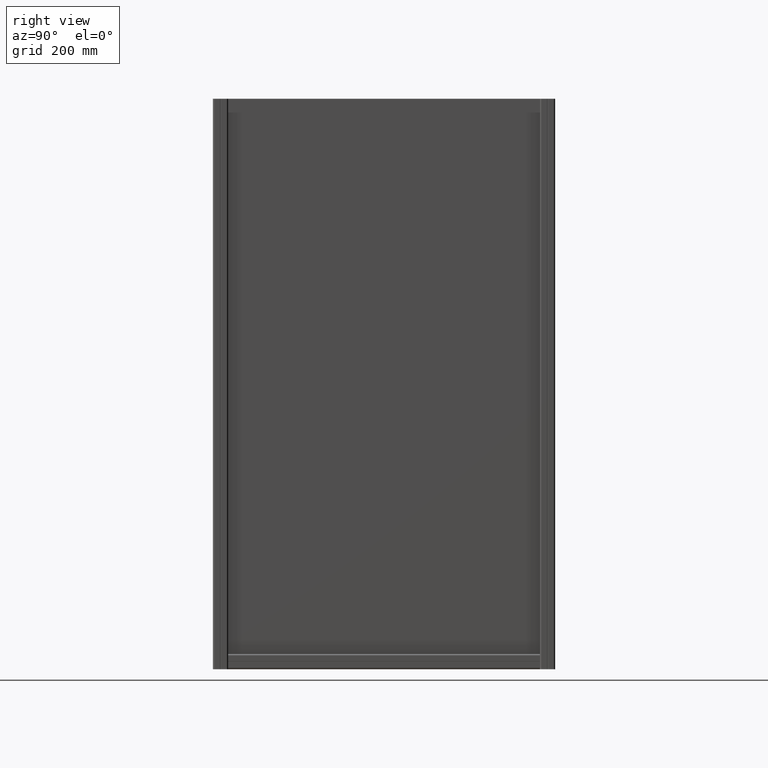
[diagram: clean part render]
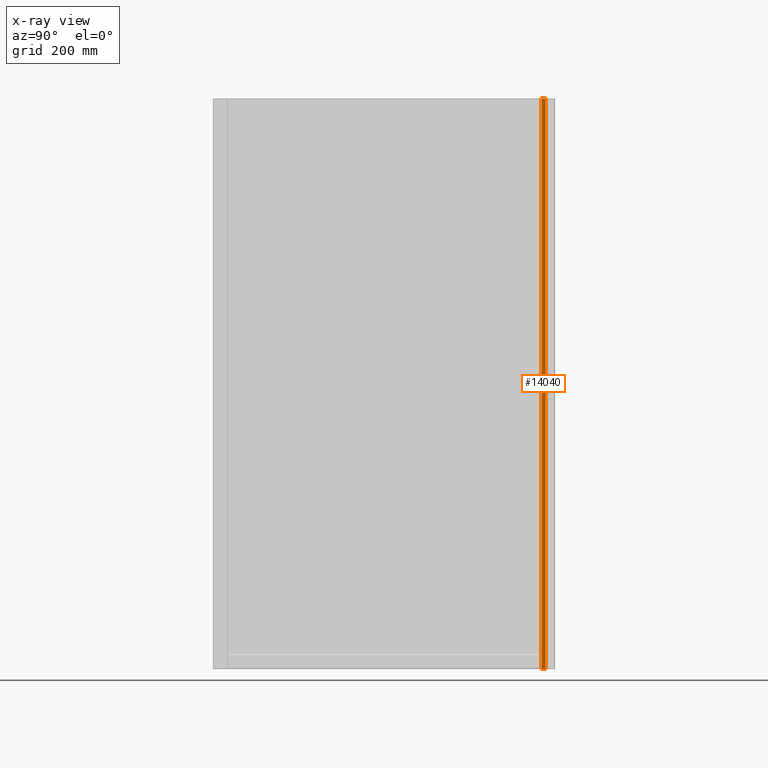
[diagram: x-ray — body ghosted, one internal face saturated and labeled with its STEP entity id]
A machine part, right view, then the same camera in x-ray: the body is ghosted and one INTERNAL B-rep face — a face not visible from any outside direction — is saturated and labeled: STEP entity #14040.
In plain terms, the highlighted planar face has unit normal (1, 0, 0).
Its self-contained STEP definition (entity closure, byte-faithful):
#522 = CARTESIAN_POINT ( 'NONE',  ( -20.00000000000033751, -15.50000000000129852, -900.0000000000000000 ) ) ;
#867 = VERTEX_POINT ( 'NONE', #522 ) ;
#1166 = DIRECTION ( 'NONE',  ( 4.370168756787335406E-14, -1.000000000000000000, 0.000000000000000000 ) ) ;
#1694 = VECTOR ( 'NONE', #8920, 1000.000000000000000 ) ;
#2261 = LINE ( 'NONE', #3909, #13398 ) ;
#2273 = ORIENTED_EDGE ( 'NONE', *, *, #13119, .F. ) ;
#2364 = LINE ( 'NONE', #3991, #2890 ) ;
#2890 = VECTOR ( 'NONE', #1166, 1000.000000000000000 ) ;
#3047 = VERTEX_POINT ( 'NONE', #13155 ) ;
#3876 = CARTESIAN_POINT ( 'NONE',  ( -20.00000000000135003, -15.50000000000129852, 600.0000000000000000 ) ) ;
#3909 = CARTESIAN_POINT ( 'NONE',  ( -20.00000000000180123, -5.100000000000370903, 800.0000000000000000 ) ) ;
#3991 = CARTESIAN_POINT ( 'NONE',  ( -20.00000000000180123, -5.100000000000370903, 600.0000000000000000 ) ) ;
#4202 = LINE ( 'NONE', #10275, #9748 ) ;
#5386 = EDGE_CURVE ( 'NONE', #10439, #3047, #2261, .T. ) ;
#7658 = CARTESIAN_POINT ( 'NONE',  ( -20.00000000000067857, -15.50000000000129852, -900.0000000000000000 ) ) ;
#8196 = EDGE_CURVE ( 'NONE', #9033, #867, #4202, .T. ) ;
#8462 = DIRECTION ( 'NONE',  ( 0.000000000000000000, 1.000000000000000000, 0.000000000000000000 ) ) ;
#8920 = DIRECTION ( 'NONE',  ( -1.080866165800837046E-13, 1.000000000000000000, 0.000000000000000000 ) ) ;
#9033 = VERTEX_POINT ( 'NONE', #3876 ) ;
#9217 = ORIENTED_EDGE ( 'NONE', *, *, #8196, .F. ) ;
#9748 = VECTOR ( 'NONE', #11343, 1000.000000000000000 ) ;
#9896 = EDGE_LOOP ( 'NONE', ( #10099, #13587, #2273, #9217 ) ) ;
#10099 = ORIENTED_EDGE ( 'NONE', *, *, #10530, .F. ) ;
#10275 = CARTESIAN_POINT ( 'NONE',  ( -20.00000000000089884, -15.50000000000129852, 800.0000000000000000 ) ) ;
#10439 = VERTEX_POINT ( 'NONE', #16012 ) ;
#10530 = EDGE_CURVE ( 'NONE', #3047, #9033, #2364, .T. ) ;
#10555 = AXIS2_PLACEMENT_3D ( 'NONE', #13308, #12117, #8462 ) ;
#10778 = PLANE ( 'NONE',  #10555 ) ;
#11343 = DIRECTION ( 'NONE',  ( 0.000000000000000000, 0.000000000000000000, -1.000000000000000000 ) ) ;
#12117 = DIRECTION ( 'NONE',  ( 1.000000000000000000, 0.000000000000000000, 0.000000000000000000 ) ) ;
#12782 = LINE ( 'NONE', #7658, #1694 ) ;
#13119 = EDGE_CURVE ( 'NONE', #867, #10439, #12782, .T. ) ;
#13155 = CARTESIAN_POINT ( 'NONE',  ( -20.00000000000180123, -5.100000000000370903, 600.0000000000000000 ) ) ;
#13308 = CARTESIAN_POINT ( 'NONE',  ( -20.00000000000180123, -5.100000000000360245, 800.0000000000000000 ) ) ;
#13398 = VECTOR ( 'NONE', #15382, 1000.000000000000000 ) ;
#13587 = ORIENTED_EDGE ( 'NONE', *, *, #5386, .F. ) ;
#14040 = ADVANCED_FACE ( 'NONE', ( #14785 ), #10778, .F. ) ;
#14785 = FACE_OUTER_BOUND ( 'NONE', #9896, .T. ) ;
#15382 = DIRECTION ( 'NONE',  ( 0.000000000000000000, 0.000000000000000000, 1.000000000000000000 ) ) ;
#16012 = CARTESIAN_POINT ( 'NONE',  ( -20.00000000000180123, -5.100000000000370903, -900.0000000000000000 ) ) ;